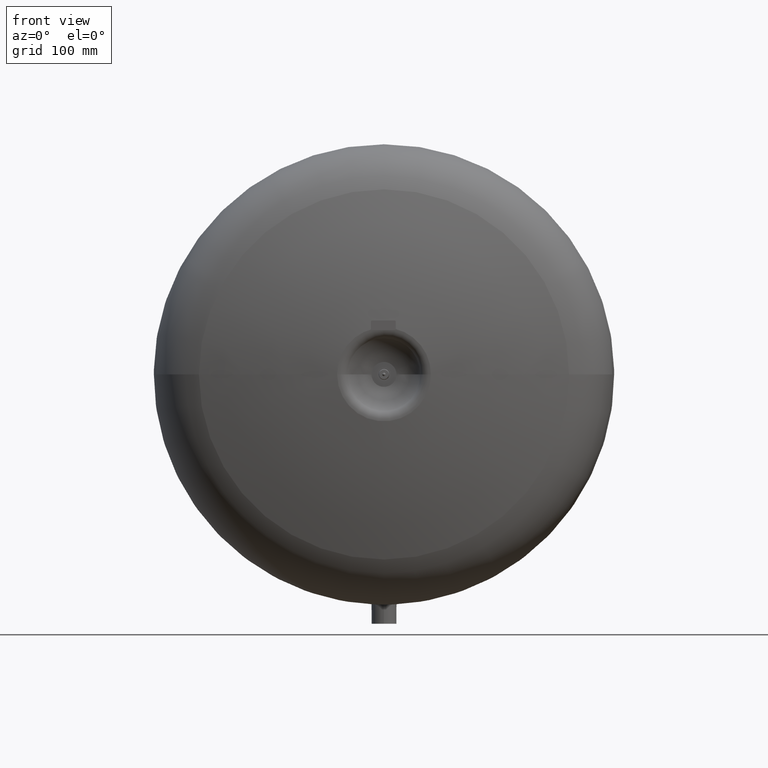
[diagram: clean part render]
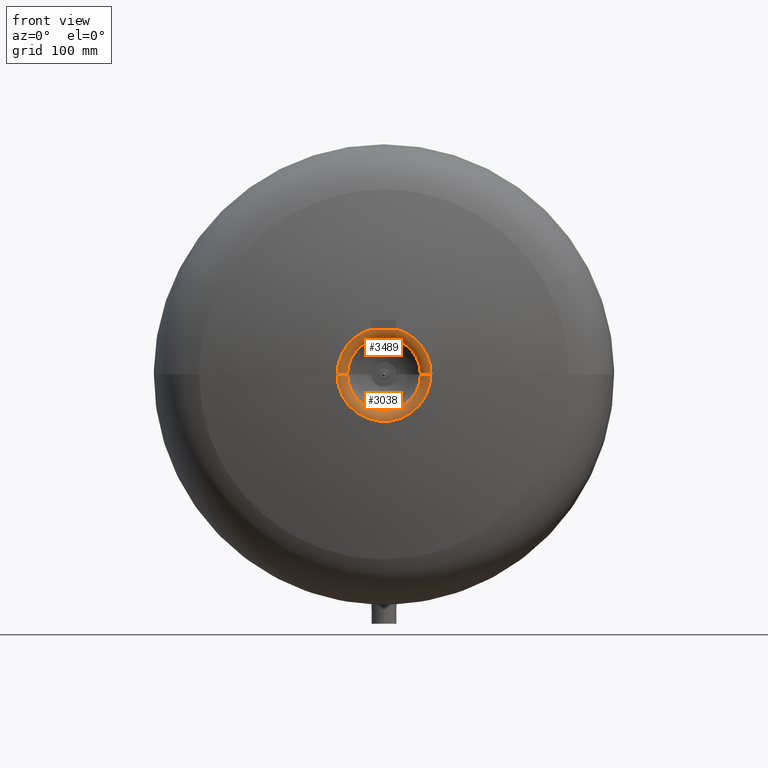
[diagram: same view with one multi-face feature highlighted, each face labeled with its STEP entity id]
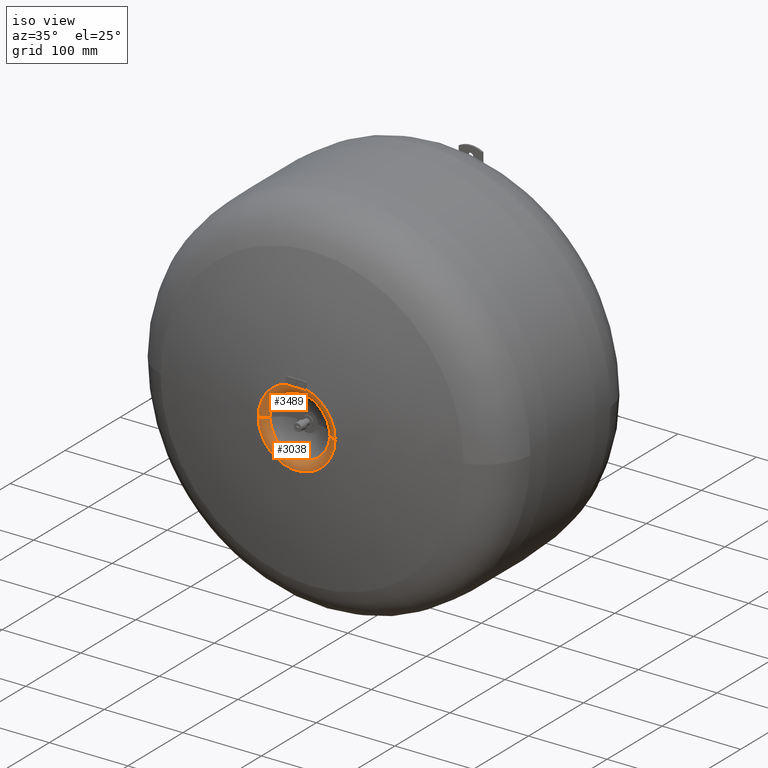
[diagram: same view with one multi-face feature highlighted, each face labeled with its STEP entity id]
A machine part, front view. The highlighted faces form ONE feature: a constant-radius fillet chain: 2 tangent blend faces with common blend radius 12 mm. The faces share edges in the B-rep.
A second angle (iso view) of the same feature is appended — it is thin or edge-on in the first view.
Their STEP definitions:
[1] entity #3038 (Torus):
#2942=CARTESIAN_POINT('',(38.000000000000014,-186.99999999999991,260.00000000000006));
#2943=VERTEX_POINT('',#2942);
#2962=CARTESIAN_POINT('',(-38.000000000000057,-186.99999999999991,260.00000000000006));
#2963=VERTEX_POINT('',#2962);
#2999=CARTESIAN_POINT('',(-1.733093E-014,-181.01496289825431,260.00000000000006));
#3000=DIRECTION('',(-1.836910E-016,-1.0,0.0));
#3001=DIRECTION('',(1.0,0.0,0.0));
#3002=AXIS2_PLACEMENT_3D('',#2999,#3000,#3001);
#3003=TOROIDAL_SURFACE('',#3002,48.400929328224933,12.0);
#3004=CARTESIAN_POINT('',(49.000000000000021,-192.99999999999989,260.00000000000006));
#3005=VERTEX_POINT('',#3004);
#3006=CARTESIAN_POINT('',(48.400929328224919,-181.01496289825431,260.00000000000006));
#3007=DIRECTION('',(0.0,0.0,1.0));
#3008=DIRECTION('',(1.0,0.0,0.0));
#3009=AXIS2_PLACEMENT_3D('',#3006,#3007,#3008);
#3010=CIRCLE('',#3009,12.0);
#3011=EDGE_CURVE('',#2943,#3005,#3010,.T.);
#3012=ORIENTED_EDGE('',*,*,#3011,.F.);
#3013=CARTESIAN_POINT('',(-1.843033E-014,-186.99999999999991,260.00000000000006));
#3014=DIRECTION('',(0.0,-1.0,0.0));
#3015=DIRECTION('',(0.0,0.0,1.0));
#3016=AXIS2_PLACEMENT_3D('',#3013,#3014,#3015);
#3017=CIRCLE('',#3016,38.000000000000036);
#3018=EDGE_CURVE('',#2963,#2943,#3017,.T.);
#3019=ORIENTED_EDGE('',*,*,#3018,.F.);
#3020=CARTESIAN_POINT('',(-49.000000000000064,-192.99999999999989,260.00000000000006));
#3021=VERTEX_POINT('',#3020);
#3022=CARTESIAN_POINT('',(-48.400929328224947,-181.01496289825431,260.00000000000006));
#3023=DIRECTION('',(0.0,0.0,-1.0));
#3024=DIRECTION('',(-1.0,0.0,0.0));
#3025=AXIS2_PLACEMENT_3D('',#3022,#3023,#3024);
#3026=CIRCLE('',#3025,12.0);
#3027=EDGE_CURVE('',#2963,#3021,#3026,.T.);
#3028=ORIENTED_EDGE('',*,*,#3027,.T.);
#3029=CARTESIAN_POINT('',(-1.953247E-014,-192.99999999999991,260.00000000000006));
#3030=DIRECTION('',(0.0,-1.0,0.0));
#3031=DIRECTION('',(0.0,0.0,1.0));
#3032=AXIS2_PLACEMENT_3D('',#3029,#3030,#3031);
#3033=CIRCLE('',#3032,49.000000000000043);
#3034=EDGE_CURVE('',#3021,#3005,#3033,.T.);
#3035=ORIENTED_EDGE('',*,*,#3034,.T.);
#3036=EDGE_LOOP('',(#3012,#3019,#3028,#3035));
#3037=FACE_OUTER_BOUND('',#3036,.T.);
#3038=ADVANCED_FACE('',(#3037),#3003,.T.);
[2] entity #3489 (Torus):
#2942=CARTESIAN_POINT('',(38.000000000000014,-186.99999999999991,260.00000000000006));
#2943=VERTEX_POINT('',#2942);
#2953=CARTESIAN_POINT('',(-1.610357E-014,-186.99999999999991,298.00000000000011));
#2954=VERTEX_POINT('',#2953);
#2955=CARTESIAN_POINT('',(-1.843033E-014,-186.99999999999991,260.00000000000006));
#2956=DIRECTION('',(0.0,-1.0,0.0));
#2957=DIRECTION('',(0.0,0.0,1.0));
#2958=AXIS2_PLACEMENT_3D('',#2955,#2956,#2957);
#2959=CIRCLE('',#2958,38.000000000000036);
#2960=EDGE_CURVE('',#2943,#2954,#2959,.T.);
#2962=CARTESIAN_POINT('',(-38.000000000000057,-186.99999999999991,260.00000000000006));
#2963=VERTEX_POINT('',#2962);
#2964=CARTESIAN_POINT('',(-1.843033E-014,-186.99999999999991,260.00000000000006));
#2965=DIRECTION('',(0.0,-1.0,0.0));
#2966=DIRECTION('',(0.0,0.0,1.0));
#2967=AXIS2_PLACEMENT_3D('',#2964,#2965,#2966);
#2968=CIRCLE('',#2967,38.000000000000036);
#2969=EDGE_CURVE('',#2954,#2963,#2968,.T.);
#3004=CARTESIAN_POINT('',(49.000000000000021,-192.99999999999989,260.00000000000006));
#3005=VERTEX_POINT('',#3004);
#3006=CARTESIAN_POINT('',(48.400929328224919,-181.01496289825431,260.00000000000006));
#3007=DIRECTION('',(0.0,0.0,1.0));
#3008=DIRECTION('',(1.0,0.0,0.0));
#3009=AXIS2_PLACEMENT_3D('',#3006,#3007,#3008);
#3010=CIRCLE('',#3009,12.0);
#3011=EDGE_CURVE('',#2943,#3005,#3010,.T.);
#3020=CARTESIAN_POINT('',(-49.000000000000064,-192.99999999999989,260.00000000000006));
#3021=VERTEX_POINT('',#3020);
#3022=CARTESIAN_POINT('',(-48.400929328224947,-181.01496289825431,260.00000000000006));
#3023=DIRECTION('',(0.0,0.0,-1.0));
#3024=DIRECTION('',(-1.0,0.0,0.0));
#3025=AXIS2_PLACEMENT_3D('',#3022,#3023,#3024);
#3026=CIRCLE('',#3025,12.0);
#3027=EDGE_CURVE('',#2963,#3021,#3026,.T.);
#3457=CARTESIAN_POINT('',(-1.653219E-014,-192.99999999999991,309.00000000000011));
#3458=VERTEX_POINT('',#3457);
#3459=CARTESIAN_POINT('',(-1.953247E-014,-192.99999999999991,260.00000000000006));
#3460=DIRECTION('',(0.0,-1.0,0.0));
#3461=DIRECTION('',(0.0,0.0,1.0));
#3462=AXIS2_PLACEMENT_3D('',#3459,#3460,#3461);
#3463=CIRCLE('',#3462,49.000000000000043);
#3464=EDGE_CURVE('',#3458,#3021,#3463,.T.);
#3466=CARTESIAN_POINT('',(-1.953247E-014,-192.99999999999991,260.00000000000006));
#3467=DIRECTION('',(0.0,-1.0,0.0));
#3468=DIRECTION('',(0.0,0.0,1.0));
#3469=AXIS2_PLACEMENT_3D('',#3466,#3467,#3468);
#3470=CIRCLE('',#3469,49.000000000000043);
#3471=EDGE_CURVE('',#3005,#3458,#3470,.T.);
#3476=CARTESIAN_POINT('',(-1.733093E-014,-181.01496289825431,260.00000000000006));
#3477=DIRECTION('',(-1.836910E-016,-1.0,0.0));
#3478=DIRECTION('',(1.0,0.0,0.0));
#3479=AXIS2_PLACEMENT_3D('',#3476,#3477,#3478);
#3480=TOROIDAL_SURFACE('',#3479,48.400929328224933,12.0);
#3481=ORIENTED_EDGE('',*,*,#3011,.T.);
#3482=ORIENTED_EDGE('',*,*,#3471,.T.);
#3483=ORIENTED_EDGE('',*,*,#3464,.T.);
#3484=ORIENTED_EDGE('',*,*,#3027,.F.);
#3485=ORIENTED_EDGE('',*,*,#2969,.F.);
#3486=ORIENTED_EDGE('',*,*,#2960,.F.);
#3487=EDGE_LOOP('',(#3481,#3482,#3483,#3484,#3485,#3486));
#3488=FACE_OUTER_BOUND('',#3487,.T.);
#3489=ADVANCED_FACE('',(#3488),#3480,.T.);